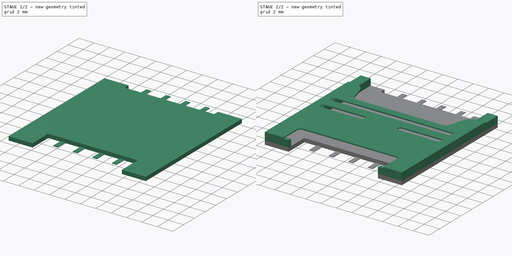
[diagram: build sequence overview — one tinted view per stage of 2, left to right]
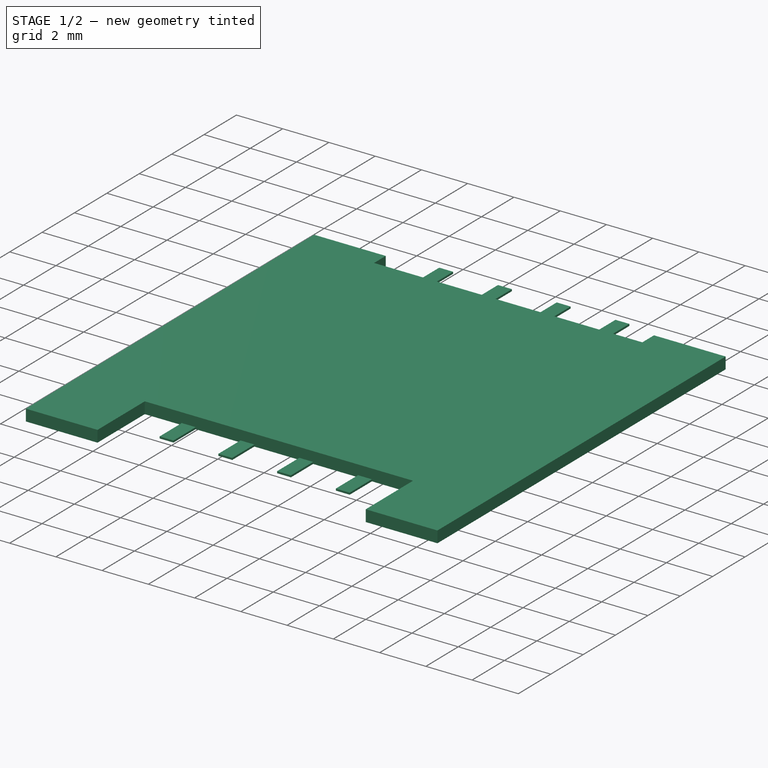
[diagram: stage 1 of 2 — iso view after this stage's code; geometry added in this stage tinted green]
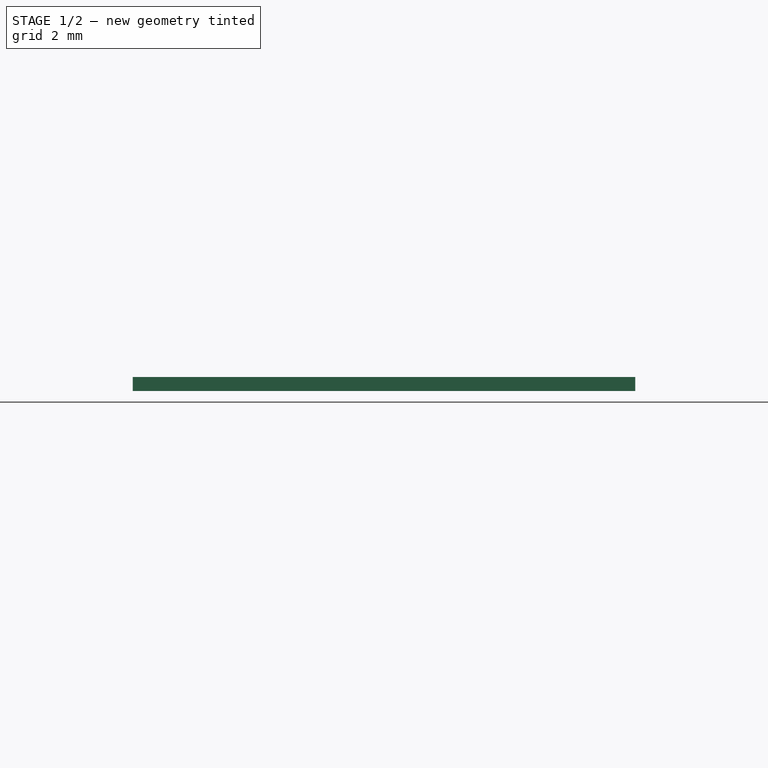
[diagram: stage 1 of 2 — front view after this stage's code; geometry added in this stage tinted green]
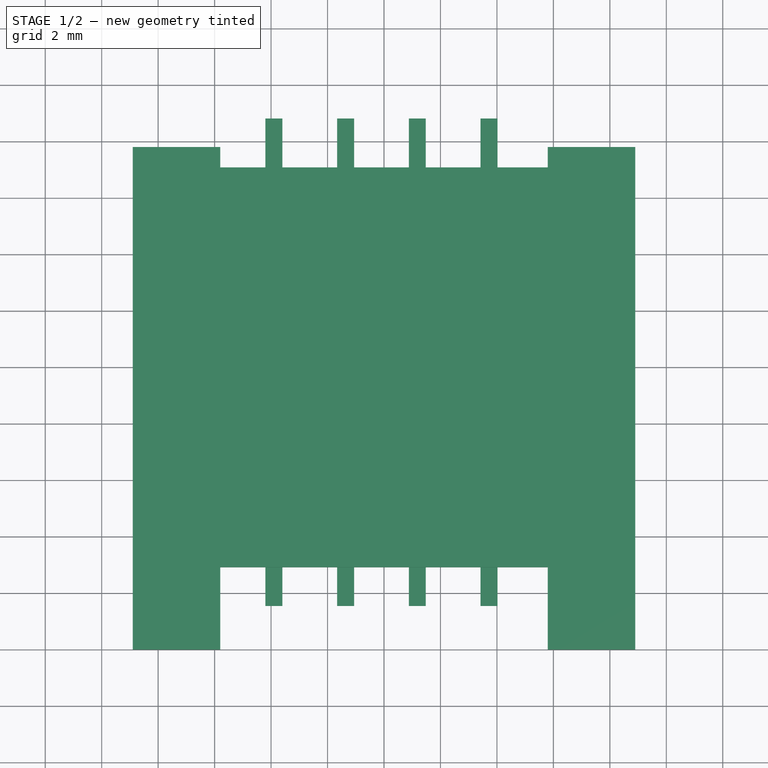
[diagram: stage 1 of 2 — top view after this stage's code; geometry added in this stage tinted green]
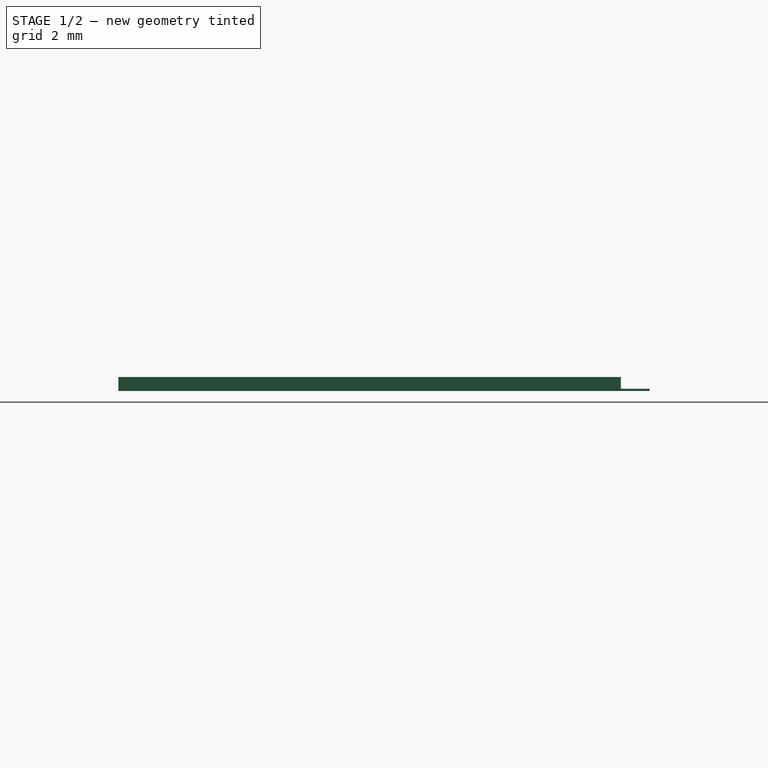
[diagram: stage 1 of 2 — right view after this stage's code; geometry added in this stage tinted green]
FCSTD DOCUMENT  (FreeCAD 0.15R4671 (Git))
Label: linkconn_sim_holder
License: All rights reserved
LicenseURL: http://en.wikipedia.org/wiki/All_rights_reserved
objects: Sketcher::SketchObject×5, PartDesign::Pad×4
note: 13 computed .brp shape members not serialized (recipe doc carries the construction recipe); baked Part::Feature solids carry a one-line shape summary decoded from their .brp

FEATURE [Sketcher::SketchObject] Sketch
  sketch-geometry (16):
    g0: LineSegment StartX=-8.9 StartY=0 StartZ=0 EndX=-8.9 EndY=17.8 EndZ=0
    g1: LineSegment StartX=-8.9 StartY=17.8 StartZ=0 EndX=-5.8 EndY=17.8 EndZ=0
    g2: LineSegment StartX=-5.8 StartY=17.8 StartZ=0 EndX=-5.8 EndY=17.08 EndZ=0
    g3: LineSegment StartX=-5.8 StartY=17.08 StartZ=0 EndX=5.8 EndY=17.08 EndZ=0
    g4: LineSegment StartX=5.8 StartY=17.08 StartZ=0 EndX=5.8 EndY=17.8 EndZ=0
    g5: LineSegment StartX=5.8 StartY=17.8 StartZ=0 EndX=8.9 EndY=17.8 EndZ=0
    g6: LineSegment StartX=8.9 StartY=17.8 StartZ=0 EndX=8.9 EndY=0 EndZ=0
    g7: LineSegment StartX=8.9 StartY=0 StartZ=0 EndX=5.8 EndY=0 EndZ=0
    g8: LineSegment StartX=5.8 StartY=0 StartZ=0 EndX=5.8 EndY=2.92 EndZ=0
    g9: LineSegment StartX=5.8 StartY=2.92 StartZ=0 EndX=-5.8 EndY=2.92 EndZ=0
    g10: LineSegment StartX=-5.8 StartY=2.92 StartZ=0 EndX=-5.8 EndY=0 EndZ=0
    g11: LineSegment StartX=-5.8 StartY=0 StartZ=0 EndX=-8.9 EndY=0 EndZ=0
    g12: LineSegment StartX=-7.6 StartY=17.8 StartZ=0 EndX=-7.6 EndY=0.45 EndZ=0
    g13: LineSegment StartX=7.6 StartY=0.45 StartZ=0 EndX=7.6 EndY=17.8 EndZ=0
    g14: LineSegment StartX=-7.6 StartY=0.45 StartZ=0 EndX=-5.8 EndY=0.45 EndZ=0
    g15: LineSegment StartX=7.6 StartY=0.45 StartZ=0 EndX=5.8 EndY=0.45 EndZ=0
  constraints (49):
    c: PointOnObject(g0,g-1)
    c: Vertical(g0)
    c: Coincident(g0,g1)
    c: Horizontal(g1)
    c: Coincident(g1,g2)
    c: Coincident(g2,g3)
    c: Horizontal(g3)
    c: Coincident(g3,g4)
    c: Coincident(g4,g5)
    c: Horizontal(g5)
    c: Coincident(g5,g6)
    c: Vertical(g6)
    c: Coincident(g6,g7)
    c: PointOnObject(g7,g-1)
    c: Horizontal(g7)
    c: Coincident(g7,g8)
    c: Coincident(g8,g9)
    c: Horizontal(g9)
    c: Coincident(g9,g10)
    c: PointOnObject(g10,g-1)
    c: Vertical(g10)
    c: Coincident(g10,g11)
    c: Coincident(g11,g0)
    c: Equal(g1,g5)
    c: Equal(g11,g7)
    c: Vertical(g2)
    c: Vertical(g4)
    c: Vertical(g8)
    c: DistanceX(g3) = 11.6
    c: Equal(g3,g9)
    c: DistanceX(g0,g5) = 17.8
    c: Equal(g0,g6)
    c: DistanceY(g0) = 17.8
    c: DistanceY(g2) = -0.72
    c: DistanceY(g1,g9) = -14.88
    c: Symmetric(g0,g6,g-2)
    c: PointOnObject(g12,g1)
    c: Vertical(g12)
    c: PointOnObject(g13,g5)
    c: Vertical(g13)
    c: Symmetric(g12,g13,g-2)
    c: DistanceY(g13) = 17.35
    c: Coincident(g14,g12)
    c: PointOnObject(g14,g10)
    c: Horizontal(g14)
    c: Coincident(g15,g13)
    c: PointOnObject(g15,g8)
    c: Horizontal(g15)
    c: DistanceX(g13,g12) = -15.2
FEATURE [Sketcher::SketchObject] Sketch001  label="bottom"
  sketch-geometry (12):
    g0: LineSegment StartX=-8.9 StartY=0 StartZ=0 EndX=-8.9 EndY=17.8 EndZ=0
    g1: LineSegment StartX=-8.9 StartY=17.8 StartZ=0 EndX=-5.8 EndY=17.8 EndZ=0
    g2: LineSegment StartX=-5.8 StartY=17.8 StartZ=0 EndX=-5.8 EndY=17.08 EndZ=0
    g3: LineSegment StartX=-5.8 StartY=17.08 StartZ=0 EndX=5.8 EndY=17.08 EndZ=0
    g4: LineSegment StartX=5.8 StartY=17.08 StartZ=0 EndX=5.8 EndY=17.8 EndZ=0
    g5: LineSegment StartX=5.8 StartY=17.8 StartZ=0 EndX=8.9 EndY=17.8 EndZ=0
    g6: LineSegment StartX=8.9 StartY=17.8 StartZ=0 EndX=8.9 EndY=0 EndZ=0
    g7: LineSegment StartX=8.9 StartY=0 StartZ=0 EndX=5.8 EndY=0 EndZ=0
    g8: LineSegment StartX=5.8 StartY=0 StartZ=0 EndX=5.8 EndY=2.92 EndZ=0
    g9: LineSegment StartX=5.8 StartY=2.92 StartZ=0 EndX=-5.8 EndY=2.92 EndZ=0
    g10: LineSegment StartX=-5.8 StartY=2.92 StartZ=0 EndX=-5.8 EndY=0 EndZ=0
    g11: LineSegment StartX=-5.8 StartY=0 StartZ=0 EndX=-8.9 EndY=0 EndZ=0
  constraints (36):
    c: PointOnObject(g0,g-1)
    c: Vertical(g0)
    c: Coincident(g0,g1)
    c: Horizontal(g1)
    c: Coincident(g1,g2)
    c: Coincident(g2,g3)
    c: Horizontal(g3)
    c: Coincident(g3,g4)
    c: Coincident(g4,g5)
    c: Horizontal(g5)
    c: Coincident(g5,g6)
    c: Vertical(g6)
    c: Coincident(g6,g7)
    c: PointOnObject(g7,g-1)
    c: Horizontal(g7)
    c: Coincident(g7,g8)
    c: Coincident(g8,g9)
    c: Horizontal(g9)
    c: Coincident(g9,g10)
    c: PointOnObject(g10,g-1)
    c: Vertical(g10)
    c: Coincident(g10,g11)
    c: Coincident(g11,g0)
    c: Equal(g1,g5)
    c: Equal(g11,g7)
    c: Vertical(g2)
    c: Vertical(g4)
    c: Vertical(g8)
    c: DistanceX(g3) = 11.6
    c: Equal(g3,g9)
    c: DistanceX(g0,g5) = 17.8
    c: Equal(g0,g6)
    c: DistanceY(g0) = 17.8
    c: DistanceY(g2) = -0.72
    c: DistanceY(g1,g9) = -14.88
    c: Symmetric(g0,g6,g-2)
FEATURE [Sketcher::SketchObject] Sketch004  label="pins"
  sketch-geometry (38):
    g0: LineSegment StartX=-4.2 StartY=3.05 StartZ=0 EndX=-3.6 EndY=3.05 EndZ=0
    g1: LineSegment StartX=-3.6 StartY=3.05 StartZ=0 EndX=-3.6 EndY=1.55 EndZ=0
    g2: LineSegment StartX=-3.6 StartY=1.55 StartZ=0 EndX=-4.2 EndY=1.55 EndZ=0
    g3: LineSegment StartX=-4.2 StartY=1.55 StartZ=0 EndX=-4.2 EndY=3.05 EndZ=0
    g4: GeomPoint [constr] X=0 Y=17.8 Z=0
    g5: GeomPoint [constr] X=-3.9 Y=1.85 Z=0
    g6: LineSegment StartX=-4.2 StartY=18.82 StartZ=0 EndX=-3.6 EndY=18.82 EndZ=0
    g7: LineSegment StartX=-3.6 StartY=18.82 StartZ=0 EndX=-3.6 EndY=16.82 EndZ=0
    g8: LineSegment StartX=-3.6 StartY=16.82 StartZ=0 EndX=-4.2 EndY=16.82 EndZ=0
    g9: LineSegment StartX=-4.2 StartY=16.82 StartZ=0 EndX=-4.2 EndY=18.82 EndZ=0
    g10: GeomPoint [constr] X=-3.9 Y=18.52 Z=0
    g11: LineSegment StartX=-1.66 StartY=18.82 StartZ=0 EndX=-1.06 EndY=18.82 EndZ=0
    g12: LineSegment StartX=-1.06 StartY=18.82 StartZ=0 EndX=-1.06 EndY=16.82 EndZ=0
    g13: LineSegment StartX=-1.06 StartY=16.82 StartZ=0 EndX=-1.66 EndY=16.82 EndZ=0
    g14: LineSegment StartX=-1.66 StartY=16.82 StartZ=0 EndX=-1.66 EndY=18.82 EndZ=0
    g15: GeomPoint [constr] X=-1.36 Y=18.52 Z=0
    g16: LineSegment StartX=0.88 StartY=18.82 StartZ=0 EndX=1.48 EndY=18.82 EndZ=0
    g17: LineSegment StartX=1.48 StartY=18.82 StartZ=0 EndX=1.48 EndY=16.82 EndZ=0
    g18: LineSegment StartX=1.48 StartY=16.82 StartZ=0 EndX=0.88 EndY=16.82 EndZ=0
    g19: LineSegment StartX=0.88 StartY=16.82 StartZ=0 EndX=0.88 EndY=18.82 EndZ=0
    g20: GeomPoint [constr] X=1.18 Y=18.52 Z=0
    g21: LineSegment StartX=3.42 StartY=18.82 StartZ=0 EndX=4.02 EndY=18.82 EndZ=0
    g22: LineSegment StartX=4.02 StartY=18.82 StartZ=0 EndX=4.02 EndY=16.82 EndZ=0
    g23: LineSegment StartX=4.02 StartY=16.82 StartZ=0 EndX=3.42 EndY=16.82 EndZ=0
    g24: LineSegment StartX=3.42 StartY=16.82 StartZ=0 EndX=3.42 EndY=18.82 EndZ=0
    g25: GeomPoint [constr] X=3.72 Y=18.52 Z=0
    g26: LineSegment StartX=-1.66 StartY=1.55 StartZ=0 EndX=-1.06 EndY=1.55 EndZ=0
    g27: LineSegment StartX=-1.06 StartY=1.55 StartZ=0 EndX=-1.06 EndY=3.05 EndZ=0
    g28: LineSegment StartX=-1.06 StartY=3.05 StartZ=0 EndX=-1.66 EndY=3.05 EndZ=0
    g29: LineSegment StartX=-1.66 StartY=3.05 StartZ=0 EndX=-1.66 EndY=1.55 EndZ=0
    g30: LineSegment StartX=0.88 StartY=1.55 StartZ=0 EndX=1.48 EndY=1.55 EndZ=0
    g31: LineSegment StartX=1.48 StartY=1.55 StartZ=0 EndX=1.48 EndY=3.05 EndZ=0
    g32: LineSegment StartX=1.48 StartY=3.05 StartZ=0 EndX=0.88 EndY=3.05 EndZ=0
    g33: LineSegment StartX=0.88 StartY=3.05 StartZ=0 EndX=0.88 EndY=1.55 EndZ=0
    g34: LineSegment StartX=4.02 StartY=1.55 StartZ=0 EndX=3.42 EndY=1.55 EndZ=0
    g35: LineSegment StartX=3.42 StartY=1.55 StartZ=0 EndX=3.42 EndY=3.05 EndZ=0
    g36: LineSegment StartX=3.42 StartY=3.05 StartZ=0 EndX=4.02 EndY=3.05 EndZ=0
    g37: LineSegment StartX=4.02 StartY=3.05 StartZ=0 EndX=4.02 EndY=1.55 EndZ=0
  constraints (107):
    c: Coincident(g0,g1)
    c: Coincident(g1,g2)
    c: Coincident(g2,g3)
    c: Coincident(g3,g0)
    c: Horizontal(g0)
    c: Horizontal(g2)
    c: Vertical(g1)
    c: Vertical(g3)
    c: DistanceX(g2) = -0.6
    c: DistanceY(g1) = -1.5
    c: DistanceX(g5,g1) = 0.3
    c: DistanceY(g1,g5) = 0.3
    c: DistanceY(g5,g4) = 15.95
    c: DistanceY(g-1,g4) = 17.8
    c: Coincident(g6,g7)
    c: Coincident(g7,g8)
    c: Coincident(g8,g9)
    c: Coincident(g9,g6)
    c: Horizontal(g6)
    c: Horizontal(g8)
    c: Vertical(g7)
    c: Vertical(g9)
    c: Equal(g6,g2)
    c: DistanceX(g10,g6) = 0.3
    c: DistanceY(g10,g6) = 0.3
    c: DistanceY(g10,g4) = -0.72
    c: DistanceY(g7) = -2
    c: Coincident(g11,g12)
    c: Coincident(g12,g13)
    c: Coincident(g13,g14)
    c: Coincident(g14,g11)
    c: Horizontal(g11)
    c: Horizontal(g13)
    c: Vertical(g12)
    c: Vertical(g14)
    c: Equal(g11,g6)
    c: Equal(g14,g7)
    c: DistanceX(g15,g11) = 0.3
    c: DistanceY(g15,g11) = 0.3
    c: DistanceY(g15,g4) = -0.72
    c: Coincident(g16,g17)
    c: Coincident(g17,g18)
    c: Coincident(g18,g19)
    c: Coincident(g19,g16)
    c: Horizontal(g16)
    c: Horizontal(g18)
    c: Vertical(g17)
    c: Vertical(g19)
    c: Equal(g11,g16)
    c: Equal(g19,g12)
    c: DistanceX(g16,g20) = -0.3
    c: DistanceY(g20,g16) = 0.3
    c: DistanceY(g20,g4) = -0.72
    c: Coincident(g21,g22)
    c: Coincident(g22,g23)
    c: Coincident(g23,g24)
    c: Coincident(g24,g21)
    c: Horizontal(g21)
    c: Horizontal(g23)
    c: Vertical(g22)
    c: Vertical(g24)
    c: Equal(g21,g16)
    c: Equal(g19,g24)
    c: DistanceX(g21,g25) = -0.3
    c: DistanceY(g25,g21) = 0.3
    c: DistanceY(g25,g4) = -0.72
    c: DistanceX(g-1,g20) = 1.18
    c: DistanceX(g20,g25) = 2.54
    c: DistanceX(g20,g15) = -2.54
    c: DistanceX(g15,g10) = -2.54
    c: Coincident(g26,g27)
    c: Coincident(g27,g28)
    c: Coincident(g28,g29)
    c: Coincident(g29,g26)
    c: Horizontal(g26)
    c: Horizontal(g28)
    c: Vertical(g27)
    c: Vertical(g29)
    c: Coincident(g30,g31)
    c: Coincident(g31,g32)
    c: Coincident(g32,g33)
    c: Coincident(g33,g30)
    c: Horizontal(g30)
    c: Horizontal(g32)
    c: Vertical(g31)
    c: Vertical(g33)
    c: Coincident(g34,g35)
    c: Coincident(g35,g36)
    c: Coincident(g36,g37)
    c: Coincident(g37,g34)
    c: Horizontal(g34)
    c: Horizontal(g36)
    c: Vertical(g35)
    c: Vertical(g37)
    c: Equal(g28,g0)
    c: Equal(g28,g32)
    c: Equal(g32,g36)
    c: Equal(g35,g31)
    c: Equal(g31,g27)
    c: Equal(g1,g27)
    c: DistanceY(g1,g26) = 0
    c: DistanceY(g26,g30) = 0
    c: DistanceY(g30,g34) = 0
    c: DistanceX(g0,g7) = 0
    c: DistanceX(g12,g27) = 0
    c: DistanceX(g31,g17) = 0
    c: DistanceX(g23,g35) = 0
FEATURE [PartDesign::Pad] Pad
  Length = 0.5
  Length2 = 100
  Sketch = -> Sketch001
  Type = 0
FEATURE [PartDesign::Pad] Pad003
  Length = 0.08
  Length2 = 100
  Sketch = -> Sketch004
  Type = 0
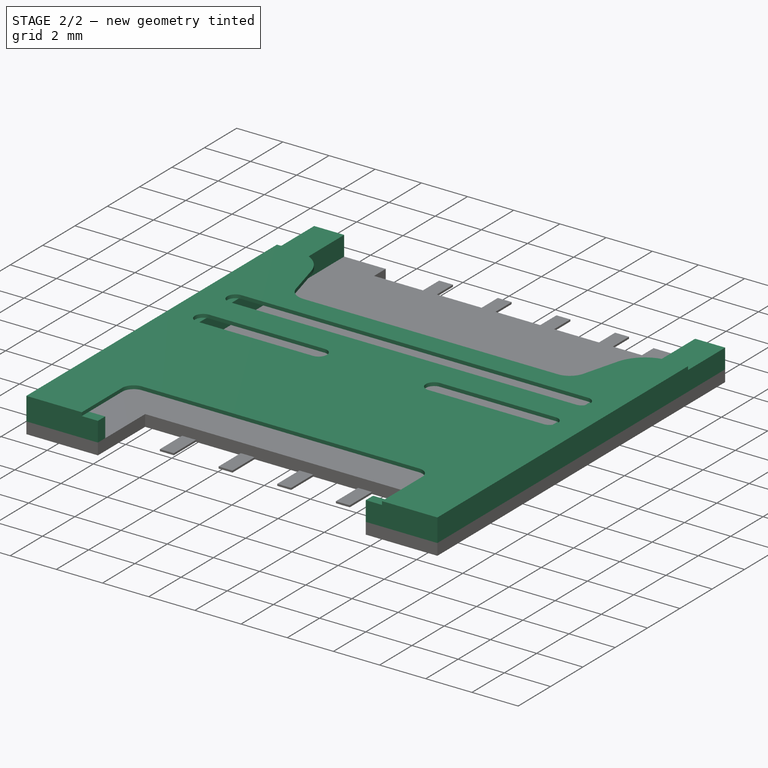
[diagram: stage 2 of 2 — iso view after this stage's code; geometry added in this stage tinted green]
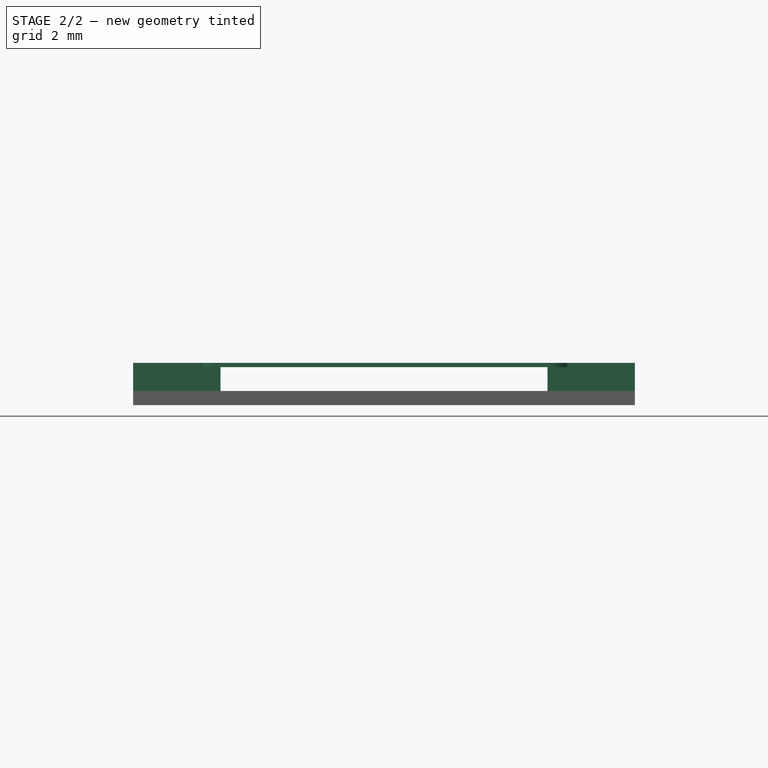
[diagram: stage 2 of 2 — front view after this stage's code; geometry added in this stage tinted green]
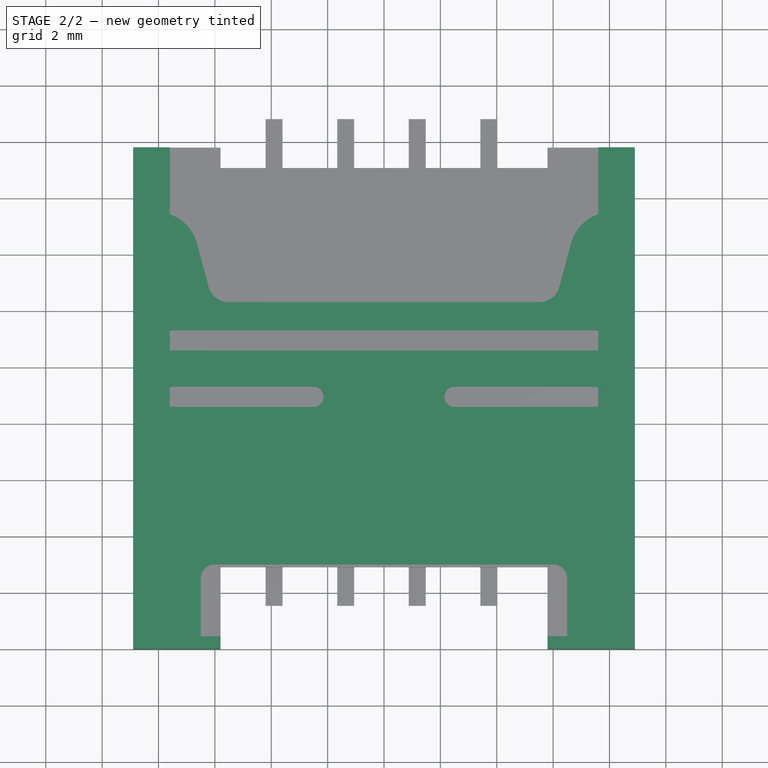
[diagram: stage 2 of 2 — top view after this stage's code; geometry added in this stage tinted green]
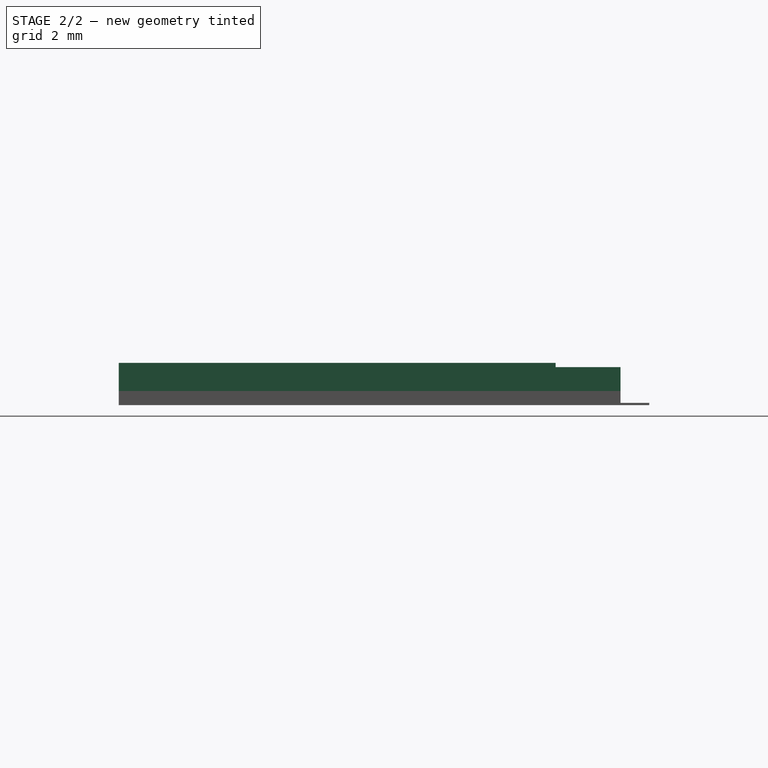
[diagram: stage 2 of 2 — right view after this stage's code; geometry added in this stage tinted green]
FEATURE [Sketcher::SketchObject] Sketch002  label="walls"
  Placement = pos=(0,0,0.5) rot=(0,0,1;0rad)
  Support = -> Pad [Face14]
  sketch-geometry (12):
    g0: LineSegment StartX=-8.9 StartY=0 StartZ=0 EndX=-8.9 EndY=17.8 EndZ=0
    g1: LineSegment StartX=8.9 StartY=17.8 StartZ=0 EndX=8.9 EndY=0 EndZ=0
    g2: LineSegment StartX=8.9 StartY=0 StartZ=0 EndX=5.8 EndY=0 EndZ=0
    g3: LineSegment StartX=-5.8 StartY=0 StartZ=0 EndX=-8.9 EndY=0 EndZ=0
    g4: LineSegment StartX=-7.6 StartY=17.8 StartZ=0 EndX=-7.6 EndY=0.45 EndZ=0
    g5: LineSegment StartX=7.6 StartY=0.45 StartZ=0 EndX=7.6 EndY=17.8 EndZ=0
    g6: LineSegment StartX=-7.6 StartY=0.45 StartZ=0 EndX=-5.8 EndY=0.45 EndZ=0
    g7: LineSegment StartX=7.6 StartY=0.45 StartZ=0 EndX=5.8 EndY=0.45 EndZ=0
    g8: LineSegment StartX=-8.9 StartY=17.8 StartZ=0 EndX=-7.6 EndY=17.8 EndZ=0
    g9: LineSegment StartX=-5.8 StartY=0 StartZ=0 EndX=-5.8 EndY=0.45 EndZ=0
    g10: LineSegment StartX=5.8 StartY=0.45 StartZ=0 EndX=5.8 EndY=0 EndZ=0
    g11: LineSegment StartX=7.6 StartY=17.8 StartZ=0 EndX=8.9 EndY=17.8 EndZ=0
  constraints (32):
    c: PointOnObject(g0,g-1)
    c: Vertical(g0)
    c: Vertical(g1)
    c: Coincident(g1,g2)
    c: PointOnObject(g2,g-1)
    c: Horizontal(g2)
    c: PointOnObject(g3,g-1)
    c: Coincident(g3,g0)
    c: Equal(g3,g2)
    c: DistanceX(g0,g1) = 17.8
    c: Equal(g0,g1)
    c: DistanceY(g0) = 17.8
    c: Symmetric(g0,g1,g-2)
    c: Vertical(g4)
    c: Vertical(g5)
    c: Symmetric(g4,g5,g-2)
    c: DistanceY(g5) = 17.35
    c: Coincident(g6,g4)
    c: Horizontal(g6)
    c: Coincident(g7,g5)
    c: Horizontal(g7)
    c: DistanceX(g5,g4) = -15.2
    c: Coincident(g8,g0)
    c: Coincident(g8,g4)
    c: Horizontal(g8)
    c: Coincident(g9,g3)
    c: Coincident(g9,g6)
    c: Coincident(g10,g7)
    c: Coincident(g10,g2)
    c: Vertical(g10)
    c: Coincident(g11,g1)
    c: Horizontal(g11)
FEATURE [PartDesign::Pad] Pad001
  Length = 0.85
  Length2 = 100
  Sketch = -> Sketch002
  Type = 0
FEATURE [Sketcher::SketchObject] Sketch003  label="shield"
  Placement = pos=(0,0,1.35) rot=(0,0,1;0rad)
  Support = -> Pad001 [Face23]
  sketch-geometry (30):
    g0: LineSegment StartX=-8.9 StartY=0 StartZ=0 EndX=-8.9 EndY=15.5 EndZ=0
    g1: LineSegment StartX=8.9 StartY=15.5 StartZ=0 EndX=8.9 EndY=0 EndZ=0
    g2: LineSegment StartX=-6.63503 StartY=14.3882 StartZ=0 EndX=-6.22444 EndY=12.8559 EndZ=0
    g3: LineSegment StartX=-5.5 StartY=12.3 StartZ=0 EndX=5.5 EndY=12.3 EndZ=0
    g4: LineSegment StartX=6.22444 StartY=12.8559 StartZ=0 EndX=6.63503 EndY=14.3882 EndZ=0
    g5: LineSegment StartX=-8.08392 StartY=15.5 StartZ=0 EndX=-8.9 EndY=15.5 EndZ=0
    g6: LineSegment StartX=8.08392 StartY=15.5 StartZ=0 EndX=8.9 EndY=15.5 EndZ=0
    g7: ArcOfCircle CenterX=8.08392 CenterY=14 CenterZ=0 NormalX=0 NormalY=0 NormalZ=1 Radius=1.5 StartAngle=1.5708 EndAngle=2.87979
    g8: ArcOfCircle CenterX=-8.08392 CenterY=14 CenterZ=0 NormalX=0 NormalY=0 NormalZ=1 Radius=1.5 StartAngle=0.261799 EndAngle=1.5708
    g9: ArcOfCircle CenterX=5.5 CenterY=13.05 CenterZ=0 NormalX=0 NormalY=0 NormalZ=1 Radius=0.75 StartAngle=4.71239 EndAngle=6.02139
    g10: ArcOfCircle CenterX=-5.5 CenterY=13.05 CenterZ=0 NormalX=0 NormalY=0 NormalZ=1 Radius=0.75 StartAngle=3.40339 EndAngle=4.71239
    g11: LineSegment StartX=6.5 StartY=0 StartZ=0 EndX=6.5 EndY=2.5 EndZ=0
    g12: LineSegment StartX=6 StartY=3 StartZ=0 EndX=-6 EndY=3 EndZ=0
    g13: LineSegment StartX=-6.5 StartY=2.5 StartZ=0 EndX=-6.5 EndY=0 EndZ=0
    g14: ArcOfCircle CenterX=6 CenterY=2.5 CenterZ=0 NormalX=0 NormalY=0 NormalZ=1 Radius=0.5 StartAngle=0 EndAngle=1.5708
    g15: ArcOfCircle CenterX=-6 CenterY=2.5 CenterZ=0 NormalX=0 NormalY=0 NormalZ=1 Radius=0.5 StartAngle=1.5708 EndAngle=3.14159
    g16: LineSegment StartX=-6.5 StartY=0 StartZ=0 EndX=-8.9 EndY=0 EndZ=0
    g17: LineSegment StartX=6.5 StartY=0 StartZ=0 EndX=8.9 EndY=0 EndZ=0
    g18: ArcOfCircle CenterX=-7.5 CenterY=10.9418 CenterZ=0 NormalX=0 NormalY=0 NormalZ=1 Radius=0.358198 StartAngle=1.5708 EndAngle=4.71239
    g19: ArcOfCircle CenterX=7.5 CenterY=10.9418 CenterZ=0 NormalX=0 NormalY=0 NormalZ=1 Radius=0.358198 StartAngle=4.71239 EndAngle=7.85398
    g20: LineSegment StartX=-7.5 StartY=10.5836 StartZ=0 EndX=7.5 EndY=10.5836 EndZ=0
    g21: LineSegment StartX=-7.5 StartY=11.3 StartZ=0 EndX=7.5 EndY=11.3 EndZ=0
    g22: ArcOfCircle CenterX=-7.5 CenterY=8.9418 CenterZ=0 NormalX=0 NormalY=0 NormalZ=1 Radius=0.358198 StartAngle=1.5708 EndAngle=4.71239
    g23: ArcOfCircle CenterX=-2.5 CenterY=8.9418 CenterZ=0 NormalX=0 NormalY=0 NormalZ=1 Radius=0.358198 StartAngle=4.71239 EndAngle=7.85398
    g24: LineSegment StartX=-7.5 StartY=8.58361 StartZ=0 EndX=-2.5 EndY=8.58361 EndZ=0
    g25: LineSegment StartX=-7.5 StartY=9.3 StartZ=0 EndX=-2.5 EndY=9.3 EndZ=0
    g26: ArcOfCircle CenterX=2.5 CenterY=8.9418 CenterZ=0 NormalX=0 NormalY=0 NormalZ=1 Radius=0.358198 StartAngle=1.5708 EndAngle=4.71239
    g27: ArcOfCircle CenterX=7.5 CenterY=8.9418 CenterZ=0 NormalX=0 NormalY=0 NormalZ=1 Radius=0.358198 StartAngle=4.71239 EndAngle=7.85398
    g28: LineSegment StartX=2.5 StartY=8.58361 StartZ=0 EndX=7.5 EndY=8.58361 EndZ=0
    g29: LineSegment StartX=2.5 StartY=9.3 StartZ=0 EndX=7.5 EndY=9.3 EndZ=0
  constraints (77):
    c: Vertical(g0)
    c: Vertical(g1)
    c: PointOnObject(g1,g-1)
    c: Symmetric(g0,g1,g-2)
    c: DistanceY(g1) = -15.5
    c: Horizontal(g3)
    c: Coincident(g5,g0)
    c: Horizontal(g5)
    c: Coincident(g6,g1)
    c: Horizontal(g6)
    c: Tangent(g4,g7) = 1.5708
    c: Tangent(g6,g7) = 1.5708
    c: Tangent(g5,g8) = -1.5708
    c: Tangent(g2,g8) = 1.5708
    c: Tangent(g3,g9) = -1.5708
    c: Tangent(g4,g9) = -1.5708
    c: Tangent(g2,g10) = -1.5708
    c: Tangent(g3,g10) = -1.5708
    c: Radius(g9) = 0.75
    c: Angle(g2) = -1.309
    c: Radius(g8) = 1.5
    c: Equal(g10,g9)
    c: Equal(g4,g2)
    c: Equal(g8,g7)
    c: Symmetric(g3,g3,g-2)
    c: Horizontal(g12)
    c: Vertical(g11)
    c: Vertical(g13)
    c: PointOnObject(g13,g-1)
    c: Tangent(g11,g14) = -1.5708
    c: Tangent(g12,g14) = -1.5708
    c: Tangent(g12,g15) = -1.5708
    c: Tangent(g13,g15) = -1.5708
    c: Radius(g14) = 0.5
    c: Equal(g14,g15)
    c: Symmetric(g12,g12,g-2)
    c: DistanceX(g3) = 11
    c: DistanceX(g12) = -12
    c: Coincident(g16,g0)
    c: Horizontal(g16)
    c: Coincident(g17,g11)
    c: Coincident(g17,g1)
    c: Horizontal(g17)
    c: DistanceY(g12,g13) = -3
    c: DistanceY(g3,g0) = 3.2
    c: DistanceX(g5) = -0.816077
    c: Equal(g5,g6)
    c: Equal(g16,g17)
    c: Tangent(g18,g21) = 1.5708
    c: Tangent(g18,g20) = -1.5708
    c: Tangent(g20,g19) = -1.5708
    c: Tangent(g21,g19) = 1.5708
    c: Horizontal(g20)
    c: Equal(g18,g19)
    c: Symmetric(g19,g18,g-2)
    c: DistanceX(g20) = 15
    c: DistanceY(g18,g18) = 0.716395
    c: DistanceY(g19,g3) = 1
    c: Tangent(g22,g25) = 1.5708
    c: Tangent(g22,g24) = -1.5708
    c: Tangent(g24,g23) = -1.5708
    c: Tangent(g25,g23) = 1.5708
    c: Horizontal(g24)
    c: Equal(g22,g23)
    c: Equal(g22,g18)
    c: Tangent(g26,g29) = 1.5708
    c: Tangent(g26,g28) = -1.5708
    c: Tangent(g28,g27) = -1.5708
    c: Tangent(g29,g27) = 1.5708
    c: Horizontal(g28)
    c: Equal(g26,g27)
    c: Equal(g26,g18)
    c: Equal(g25,g29)
    c: Symmetric(g23,g26,g-2)
    c: DistanceX(g24) = 5
    c: DistanceX(g22,g18) = 0
    c: DistanceY(g26,g3) = 3
FEATURE [PartDesign::Pad] Pad002
  Length = 0.15
  Length2 = 100
  Sketch = -> Sketch003
  Type = 0
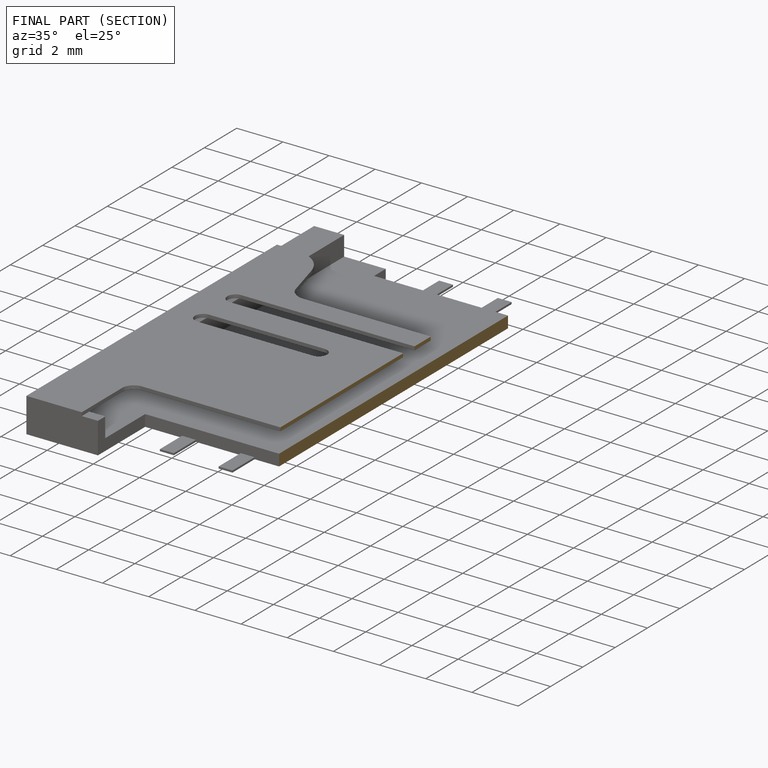
[diagram: finished part — half-section view (interior)]
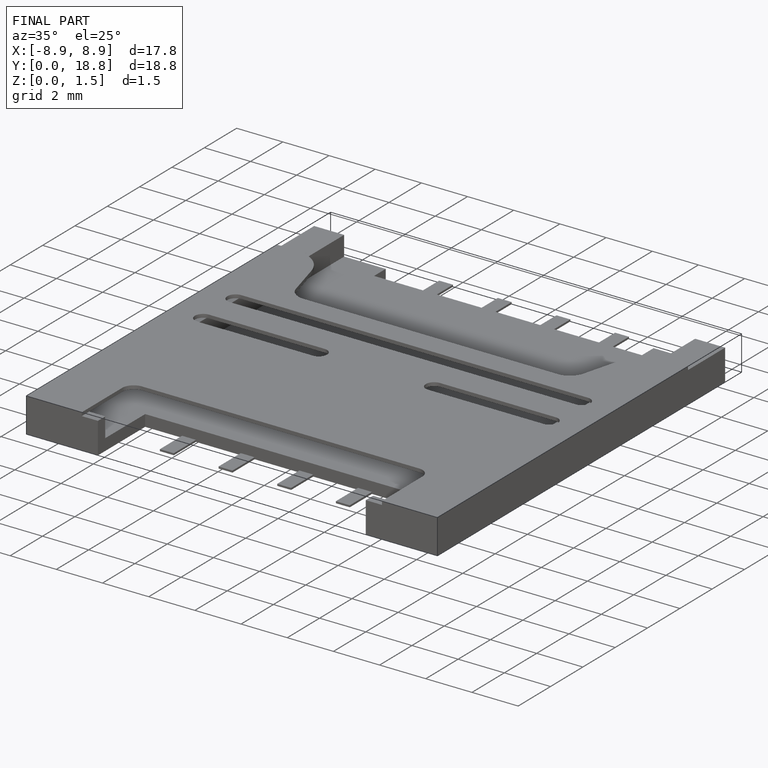
[diagram: finished part — iso view with bounding-box wireframe]
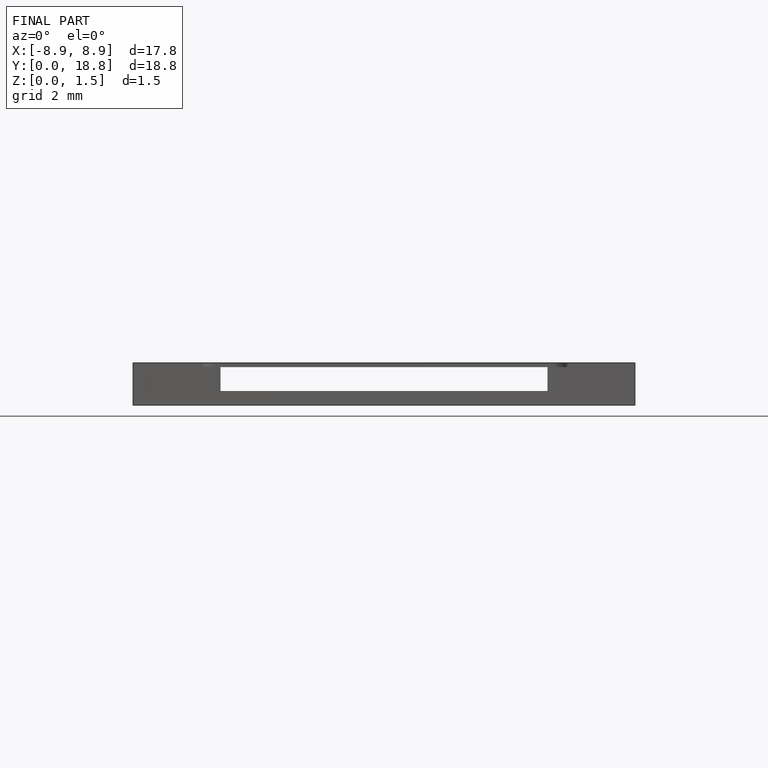
[diagram: finished part — front view with bounding-box wireframe]
